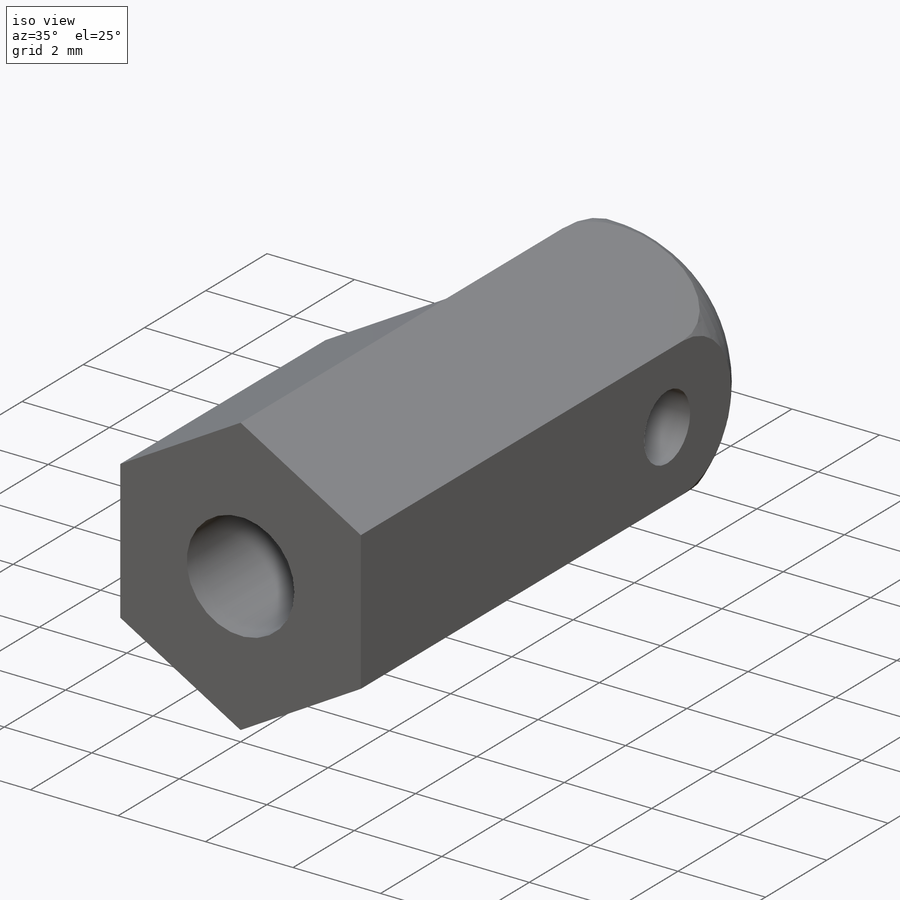
[diagram: iso view]
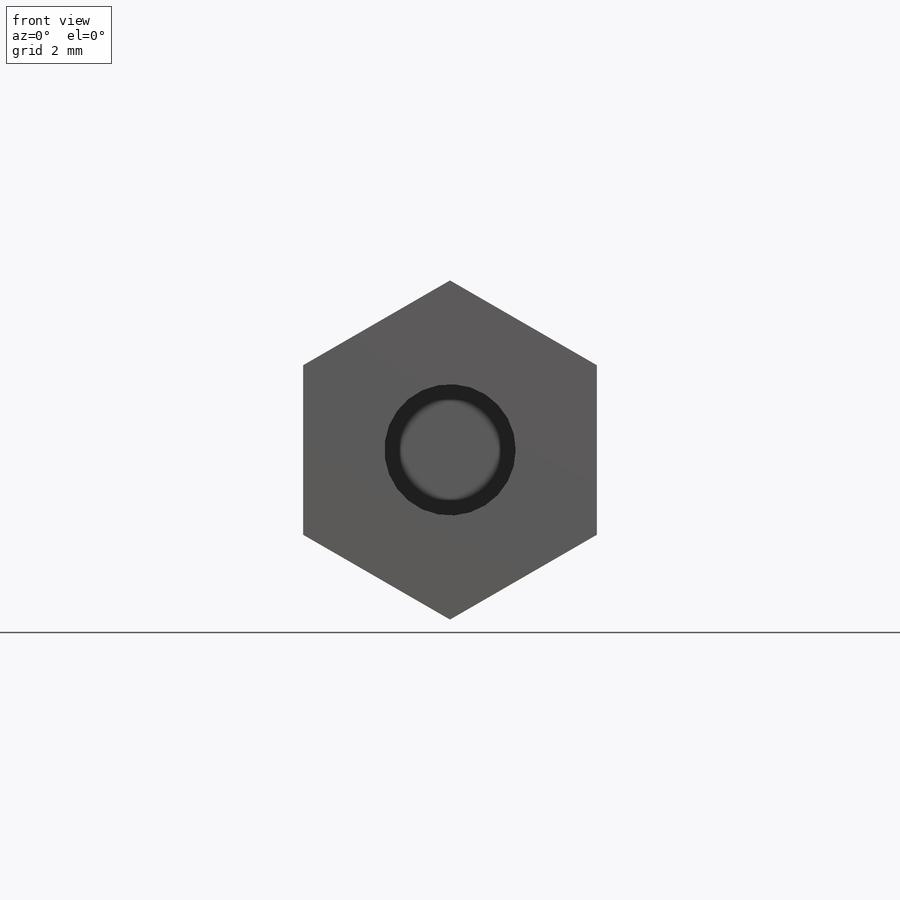
[diagram: front view]
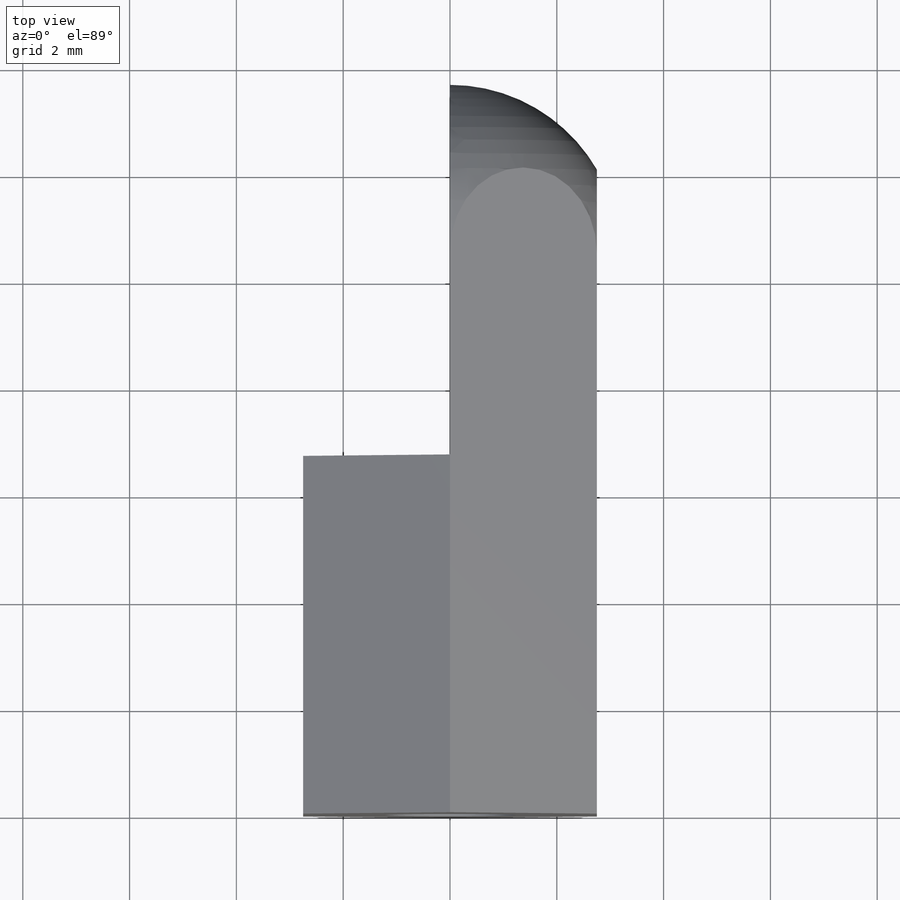
[diagram: top view]
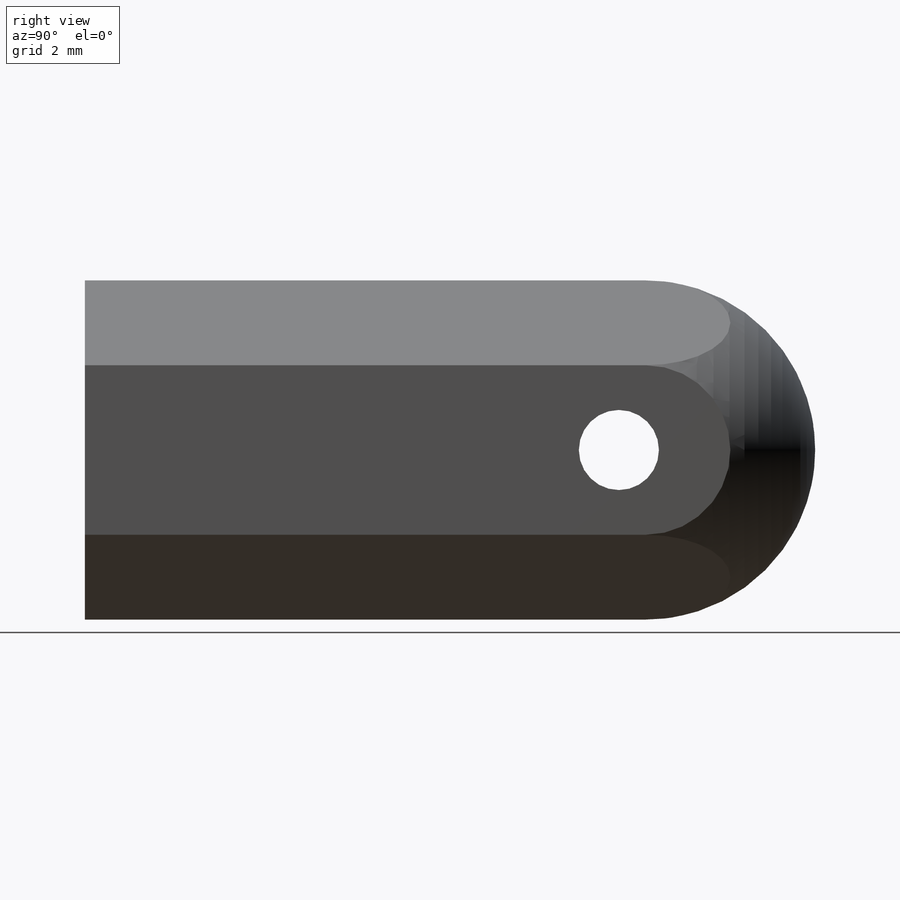
[diagram: right view]
SOLIDWORKS PART (.sldprt)
format: sldprt  version: not decoded by parser v0  size: 222,720 bytes
history: native  units: mm
features: sketch x5, plane x3, cut_extrude x3, material x1, extrude x1, cut_revolve x1 + 1 further entry (+10 scaffold rows collapsed)
feature tree (25):
  scaffold x10  (default folders/planes/origin — collapsed)
  material  "1.0503 (C45)"
  plane  "Ebene vorne"
  plane  "Ebene oben"
  plane  "Ebene rechts"
  "Tabelle"
  sketch  "Skizze1"  dims[D2=2.46mm D1=5.5mm]
  extrude  "Aufsatz-Linear austragen1"  Depth=15mm
  cut_extrude  "Schnitt-Linear austragen3"  [1 undecoded]
  sketch  "Skizze1<3>"  dims[D1=6.0mm]
  sketch  "Skizze2"  dims[D1=10.5mm D2=5.0mm]
  cut_revolve  "Schnitt-Rotation1"  Angle=360deg
  sketch  "Skizze3"  dims[D2=1.5mm D1=10.0mm]
  cut_extrude  "Schnitt-Linear austragen1"  [1 undecoded]
  sketch  "Skizze4"  dims[c1.D1=1.5mm c2.D1=90.0deg c3.D1=3.3mm]
  cut_extrude  "Schnitt-Linear austragen2"  [1 undecoded]
decode coverage: 7 of 10 modeling features carry decoded parameters; 1 rows unclassified (native names shown)
note: 3 parameter values undecoded
summary: no parameter record found for 3 features
note: suppression state not decoded; provenance and decode notes live in map.json
